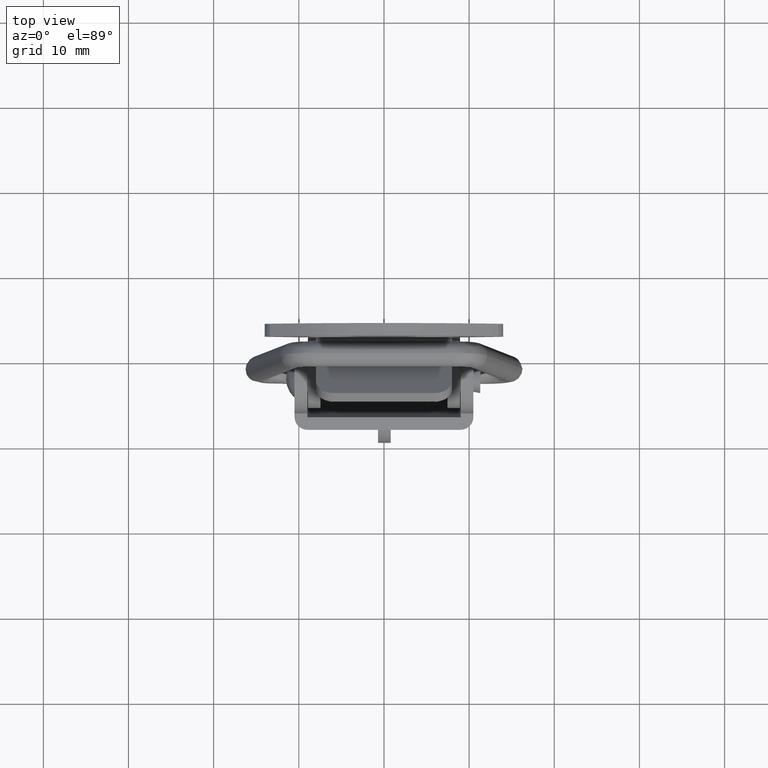
[diagram: clean part render]
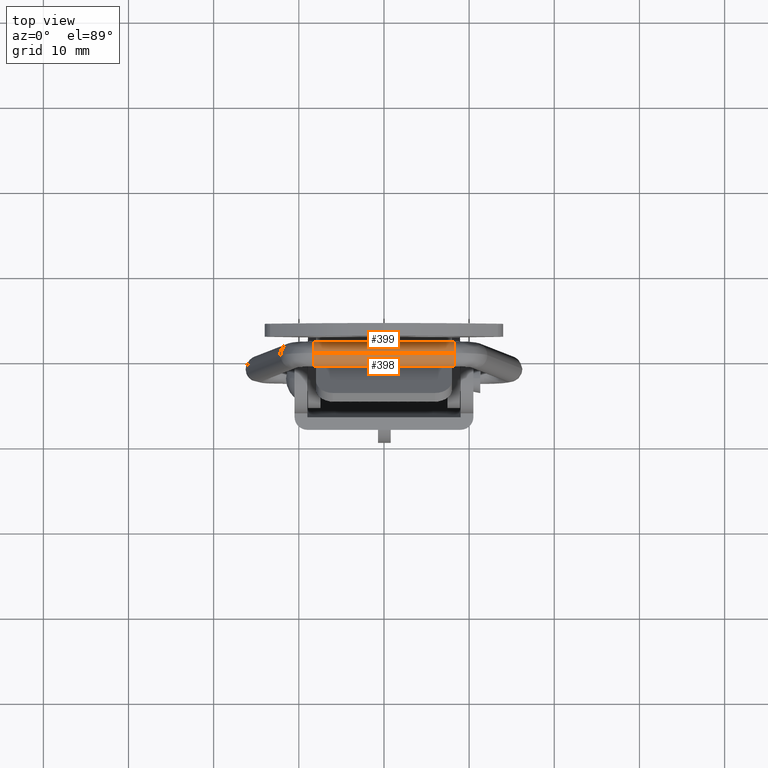
[diagram: same view with one multi-face feature highlighted, each face labeled with its STEP entity id]
A machine part, top view. The highlighted faces form ONE feature: a constant-radius fillet chain: 2 tangent blend faces with common blend radius 1.5 mm. The faces share edges in the B-rep.
Their STEP definitions:
[1] entity #399 (Cylinder):
#399=ADVANCED_FACE('',(#1843),#1842,.T.);
#1842=CYLINDRICAL_SURFACE('',#33548,1.50000000000E+00);
#1843=FACE_OUTER_BOUND('',#33549,.T.);
#33545=CARTESIAN_POINT('',(0.00000000000E+00,5.06261699229E-11,1.50000000000E+00));
#33546=DIRECTION('',(-1.00000000000E+00,-0.00000000000E+00,0.00000000000E+00));
#33547=DIRECTION('',(-0.00000000000E+00,-1.22464679915E-16,-1.00000000000E+00));
#33548=AXIS2_PLACEMENT_3D('',#33545,#33546,#33547);
#33549=EDGE_LOOP('',(#34556,#34557,#34558,#34559));
#34556=ORIENTED_EDGE('',*,*,#35126,.T.);
#34557=ORIENTED_EDGE('',*,*,#35123,.T.);
#34558=ORIENTED_EDGE('',*,*,#35117,.F.);
#34559=ORIENTED_EDGE('',*,*,#35125,.F.);
#35117=EDGE_CURVE('',#37833,#37834,#37835,.T.);
#35123=EDGE_CURVE('',#37873,#37834,#37874,.T.);
#35125=EDGE_CURVE('',#37880,#37833,#37887,.T.);
#35126=EDGE_CURVE('',#37880,#37873,#37893,.T.);
#37833=VERTEX_POINT('',#40469);
#37834=VERTEX_POINT('',#40470);
#37835=CIRCLE('',#40474,1.50000000000E+00);
#37873=VERTEX_POINT('',#40495);
#37874=(BOUNDED_CURVE() B_SPLINE_CURVE(1,(#40496,#40497),.UNSPECIFIED.,.F.,.F.) B_SPLINE_CURVE_WITH_KNOTS((2,2),(8.33333328360E-02,9.16666665505E-01),.UNSPECIFIED.) CURVE() GEOMETRIC_REPRESENTATION_ITEM() RATIONAL_B_SPLINE_CURVE((1.00000000000E+00,1.00000000000E+00)) REPRESENTATION_ITEM('') );
#37880=VERTEX_POINT('',#40498);
#37887=(BOUNDED_CURVE() B_SPLINE_CURVE(1,(#40503,#40504),.UNSPECIFIED.,.F.,.F.) B_SPLINE_CURVE_WITH_KNOTS((2,2),(8.33333333333E-02,9.16666666667E-01),.UNSPECIFIED.) CURVE() GEOMETRIC_REPRESENTATION_ITEM() RATIONAL_B_SPLINE_CURVE((7.50000000000E-01,7.50000000000E-01)) REPRESENTATION_ITEM('') );
#37893=CIRCLE('',#40508,1.50000000000E+00);
#40469=CARTESIAN_POINT('',(-8.23019759528E+00,5.07260419921E-11,3.00000000000E+00));
#40470=CARTESIAN_POINT('',(-8.23019759528E+00,5.06259478783E-11,3.70074341542E-17));
#40471=CARTESIAN_POINT('',(-8.23019759528E+00,5.06758263824E-11,1.50000000000E+00));
#40472=DIRECTION('',(-1.00000000000E+00,-0.00000000000E+00,0.00000000000E+00));
#40473=DIRECTION('',(-0.00000000000E+00,3.31554445333E-14,1.00000000000E+00));
#40474=AXIS2_PLACEMENT_3D('',#40471,#40472,#40473);
#40495=CARTESIAN_POINT('',(8.23019759527E+00,5.06756858698E-11,3.70074341542E-17));
#40496=CARTESIAN_POINT('',(8.23019760509E+00,5.06259862259E-11,0.00000000000E+00));
#40497=CARTESIAN_POINT('',(-8.23019757233E+00,5.06259862259E-11,0.00000000000E+00));
#40498=CARTESIAN_POINT('',(8.23019759527E+00,5.06756885621E-11,3.00000000000E+00));
#40503=CARTESIAN_POINT('',(8.23019759527E+00,5.06263919675E-11,3.00000000000E+00));
#40504=CARTESIAN_POINT('',(-8.23019759528E+00,5.06263919675E-11,3.00000000000E+00));
#40505=CARTESIAN_POINT('',(8.23019759527E+00,5.06758263824E-11,1.50000000000E+00));
#40506=DIRECTION('',(-1.00000000000E+00,-0.00000000000E+00,0.00000000000E+00));
#40507=DIRECTION('',(-0.00000000000E+00,3.05804666666E-17,1.00000000000E+00));
#40508=AXIS2_PLACEMENT_3D('',#40505,#40506,#40507);
[2] entity #398 (Cylinder):
#398=ADVANCED_FACE('',(#1833),#1832,.T.);
#1832=CYLINDRICAL_SURFACE('',#33543,1.50000000000E+00);
#1833=FACE_OUTER_BOUND('',#33544,.T.);
#33540=CARTESIAN_POINT('',(0.00000000000E+00,5.06261699229E-11,1.50000000000E+00));
#33541=DIRECTION('',(-1.00000000000E+00,-0.00000000000E+00,0.00000000000E+00));
#33542=DIRECTION('',(-0.00000000000E+00,-1.22464679915E-16,-1.00000000000E+00));
#33543=AXIS2_PLACEMENT_3D('',#33540,#33541,#33542);
#33544=EDGE_LOOP('',(#34552,#34553,#34554,#34555));
#34552=ORIENTED_EDGE('',*,*,#35122,.F.);
#34553=ORIENTED_EDGE('',*,*,#35123,.F.);
#34554=ORIENTED_EDGE('',*,*,#35124,.T.);
#34555=ORIENTED_EDGE('',*,*,#35125,.T.);
#35122=EDGE_CURVE('',#37834,#37833,#37867,.T.);
#35123=EDGE_CURVE('',#37873,#37834,#37874,.T.);
#35124=EDGE_CURVE('',#37873,#37880,#37881,.T.);
#35125=EDGE_CURVE('',#37880,#37833,#37887,.T.);
#37833=VERTEX_POINT('',#40469);
#37834=VERTEX_POINT('',#40470);
#37867=CIRCLE('',#40494,1.50000000000E+00);
#37873=VERTEX_POINT('',#40495);
#37874=(BOUNDED_CURVE() B_SPLINE_CURVE(1,(#40496,#40497),.UNSPECIFIED.,.F.,.F.) B_SPLINE_CURVE_WITH_KNOTS((2,2),(8.33333328360E-02,9.16666665505E-01),.UNSPECIFIED.) CURVE() GEOMETRIC_REPRESENTATION_ITEM() RATIONAL_B_SPLINE_CURVE((1.00000000000E+00,1.00000000000E+00)) REPRESENTATION_ITEM('') );
#37880=VERTEX_POINT('',#40498);
#37881=CIRCLE('',#40502,1.50000000000E+00);
#37887=(BOUNDED_CURVE() B_SPLINE_CURVE(1,(#40503,#40504),.UNSPECIFIED.,.F.,.F.) B_SPLINE_CURVE_WITH_KNOTS((2,2),(8.33333333333E-02,9.16666666667E-01),.UNSPECIFIED.) CURVE() GEOMETRIC_REPRESENTATION_ITEM() RATIONAL_B_SPLINE_CURVE((7.50000000000E-01,7.50000000000E-01)) REPRESENTATION_ITEM('') );
#40469=CARTESIAN_POINT('',(-8.23019759528E+00,5.07260419921E-11,3.00000000000E+00));
#40470=CARTESIAN_POINT('',(-8.23019759528E+00,5.06259478783E-11,3.70074341542E-17));
#40491=CARTESIAN_POINT('',(-8.23019759528E+00,5.06758263824E-11,1.50000000000E+00));
#40492=DIRECTION('',(-1.00000000000E+00,-0.00000000000E+00,0.00000000000E+00));
#40493=DIRECTION('',(-0.00000000000E+00,3.31554445333E-14,1.00000000000E+00));
#40494=AXIS2_PLACEMENT_3D('',#40491,#40492,#40493);
#40495=CARTESIAN_POINT('',(8.23019759527E+00,5.06756858698E-11,3.70074341542E-17));
#40496=CARTESIAN_POINT('',(8.23019760509E+00,5.06259862259E-11,0.00000000000E+00));
#40497=CARTESIAN_POINT('',(-8.23019757233E+00,5.06259862259E-11,0.00000000000E+00));
#40498=CARTESIAN_POINT('',(8.23019759527E+00,5.06756885621E-11,3.00000000000E+00));
#40499=CARTESIAN_POINT('',(8.23019759527E+00,5.06758263824E-11,1.50000000000E+00));
#40500=DIRECTION('',(-1.00000000000E+00,-0.00000000000E+00,0.00000000000E+00));
#40501=DIRECTION('',(-0.00000000000E+00,3.05804666666E-17,1.00000000000E+00));
#40502=AXIS2_PLACEMENT_3D('',#40499,#40500,#40501);
#40503=CARTESIAN_POINT('',(8.23019759527E+00,5.06263919675E-11,3.00000000000E+00));
#40504=CARTESIAN_POINT('',(-8.23019759528E+00,5.06263919675E-11,3.00000000000E+00));